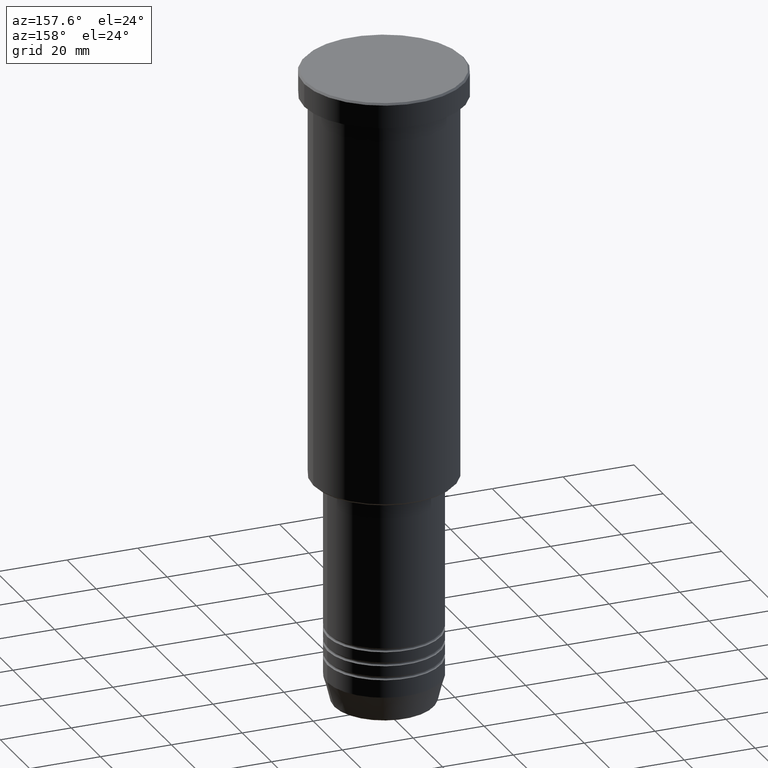
[diagram: clean part render]
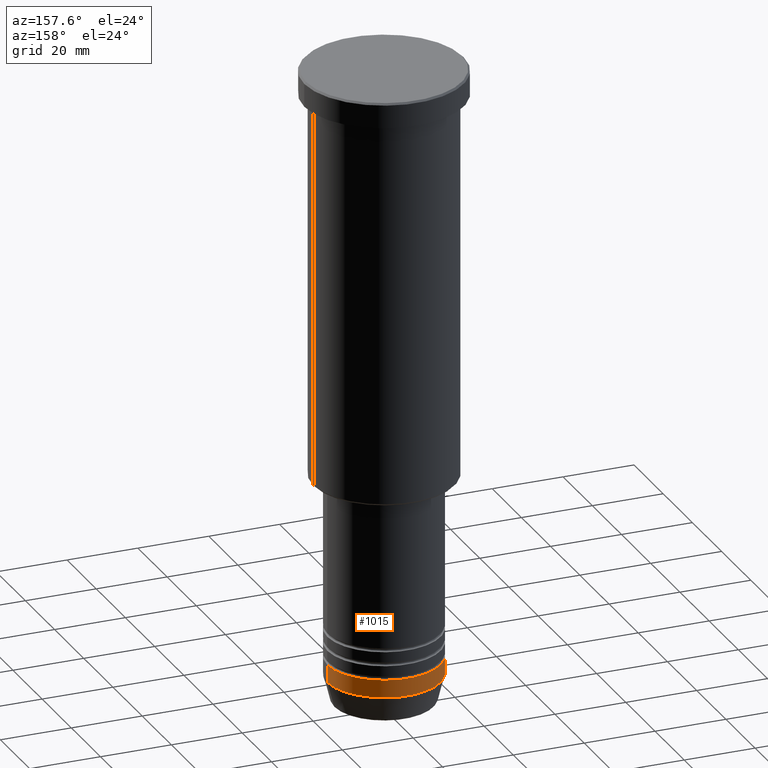
[diagram: same view with one face highlighted and labeled with its STEP entity id]
A machine part, auxiliary view. The second image highlights one B-rep face of the part: STEP entity #1015.
In plain terms, the highlighted cylindrical surface (partial cylindrical patch) has radius 16 mm, axis along (-0, -0, 1).
Its self-contained STEP definition (entity closure, byte-faithful):
#8 = CARTESIAN_POINT ( 'NONE',  ( 16.00000000000000000, 0.000000000000000000, -167.5000000000000000 ) ) ;
#33 = CARTESIAN_POINT ( 'NONE',  ( 0.000000000000000000, 0.000000000000000000, -172.5000000000000284 ) ) ;
#95 = CIRCLE ( 'NONE', #1029, 16.00000000000000000 ) ;
#105 = CIRCLE ( 'NONE', #767, 16.00000000000000000 ) ;
#163 = CARTESIAN_POINT ( 'NONE',  ( 0.000000000000000000, 0.000000000000000000, 0.000000000000000000 ) ) ;
#174 = CARTESIAN_POINT ( 'NONE',  ( 16.00000000000000000, 0.000000000000000000, -172.5000000000000284 ) ) ;
#188 = DIRECTION ( 'NONE',  ( -0.000000000000000000, -0.000000000000000000, 1.000000000000000000 ) ) ;
#247 = FACE_OUTER_BOUND ( 'NONE', #965, .T. ) ;
#258 = VERTEX_POINT ( 'NONE', #1179 ) ;
#298 = DIRECTION ( 'NONE',  ( -0.000000000000000000, -0.000000000000000000, 1.000000000000000000 ) ) ;
#324 = EDGE_CURVE ( 'NONE', #596, #709, #105, .T. ) ;
#441 = DIRECTION ( 'NONE',  ( -0.000000000000000000, -0.000000000000000000, 1.000000000000000000 ) ) ;
#477 = VECTOR ( 'NONE', #441, 1000.000000000000000 ) ;
#502 = VECTOR ( 'NONE', #188, 1000.000000000000000 ) ;
#505 = DIRECTION ( 'NONE',  ( -0.000000000000000000, -0.000000000000000000, 1.000000000000000000 ) ) ;
#539 = AXIS2_PLACEMENT_3D ( 'NONE', #163, #505, #878 ) ;
#540 = CARTESIAN_POINT ( 'NONE',  ( -16.00000000000000000, 1.959434878635765131E-15, 0.000000000000000000 ) ) ;
#545 = LINE ( 'NONE', #1093, #502 ) ;
#596 = VERTEX_POINT ( 'NONE', #8 ) ;
#627 = DIRECTION ( 'NONE',  ( -0.000000000000000000, -0.000000000000000000, 1.000000000000000000 ) ) ;
#638 = DIRECTION ( 'NONE',  ( 1.000000000000000000, 0.000000000000000000, 0.000000000000000000 ) ) ;
#668 = VERTEX_POINT ( 'NONE', #174 ) ;
#705 = ORIENTED_EDGE ( 'NONE', *, *, #1173, .F. ) ;
#709 = VERTEX_POINT ( 'NONE', #1178 ) ;
#765 = EDGE_CURVE ( 'NONE', #668, #258, #95, .T. ) ;
#767 = AXIS2_PLACEMENT_3D ( 'NONE', #1101, #627, #638 ) ;
#878 = DIRECTION ( 'NONE',  ( 1.000000000000000000, 0.000000000000000000, 0.000000000000000000 ) ) ;
#882 = ORIENTED_EDGE ( 'NONE', *, *, #324, .F. ) ;
#908 = LINE ( 'NONE', #540, #477 ) ;
#944 = ORIENTED_EDGE ( 'NONE', *, *, #765, .T. ) ;
#965 = EDGE_LOOP ( 'NONE', ( #944, #1166, #882, #705 ) ) ;
#1015 = ADVANCED_FACE ( 'NONE', ( #247 ), #1153, .T. ) ;
#1029 = AXIS2_PLACEMENT_3D ( 'NONE', #33, #298, #1047 ) ;
#1047 = DIRECTION ( 'NONE',  ( 1.000000000000000000, 0.000000000000000000, 0.000000000000000000 ) ) ;
#1093 = CARTESIAN_POINT ( 'NONE',  ( 16.00000000000000000, 0.000000000000000000, 0.000000000000000000 ) ) ;
#1101 = CARTESIAN_POINT ( 'NONE',  ( 0.000000000000000000, 0.000000000000000000, -167.5000000000000000 ) ) ;
#1153 = CYLINDRICAL_SURFACE ( 'NONE', #539, 16.00000000000000000 ) ;
#1166 = ORIENTED_EDGE ( 'NONE', *, *, #1172, .T. ) ;
#1172 = EDGE_CURVE ( 'NONE', #258, #709, #908, .T. ) ;
#1173 = EDGE_CURVE ( 'NONE', #668, #596, #545, .T. ) ;
#1178 = CARTESIAN_POINT ( 'NONE',  ( -16.00000000000000000, 1.959434878635765131E-15, -167.5000000000000000 ) ) ;
#1179 = CARTESIAN_POINT ( 'NONE',  ( -16.00000000000000000, 1.959434878635765131E-15, -172.5000000000000284 ) ) ;